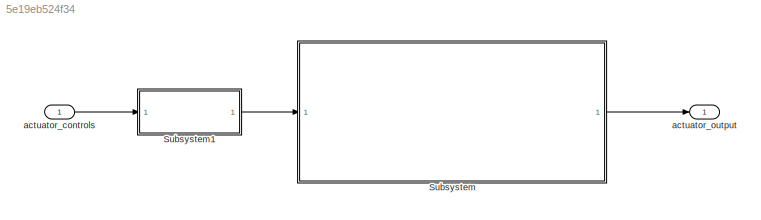
MODEL slx_5e19eb524f34
KIND model
CONFIG AbsTol = auto
CONFIG EnableMultiTasking = off
CONFIG FixedStep = 0.005
CONFIG MaxStep = auto
CONFIG MinStep = auto
CONFIG RelTol = 1e-3
CONFIG SampleTimeConstraint = Unconstrained
CONFIG SolverName = FixedStepAuto
CONFIG StartTime = 0.0
CONFIG StopTime = 10.0
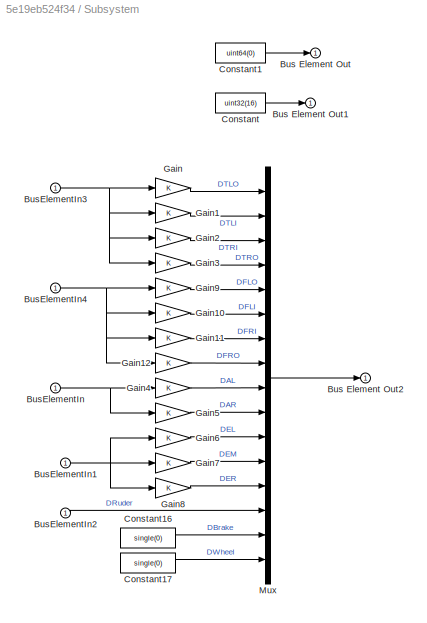
BLOCK [SubSystem] Subsystem
BLOCK [Outport] Subsystem/Bus Element Out
BLOCK [Outport] Subsystem/Bus Element Out1
BLOCK [Outport] Subsystem/Bus Element Out2
BLOCK [Inport] Subsystem/BusElementIn
BLOCK [Inport] Subsystem/BusElementIn1
BLOCK [Inport] Subsystem/BusElementIn2
BLOCK [Inport] Subsystem/BusElementIn3
BLOCK [Inport] Subsystem/BusElementIn4
BLOCK [Constant] Subsystem/Constant
  Value = uint32(16)
BLOCK [Constant] Subsystem/Constant1
  Value = uint64(0)
BLOCK [Constant] Subsystem/Constant16
  Value = single(0)
BLOCK [Constant] Subsystem/Constant17
  Value = single(0)
BLOCK [Gain] Subsystem/Gain
BLOCK [Gain] Subsystem/Gain1
BLOCK [Gain] Subsystem/Gain10
BLOCK [Gain] Subsystem/Gain11
BLOCK [Gain] Subsystem/Gain12
BLOCK [Gain] Subsystem/Gain2
BLOCK [Gain] Subsystem/Gain3
BLOCK [Gain] Subsystem/Gain4
BLOCK [Gain] Subsystem/Gain5
BLOCK [Gain] Subsystem/Gain6
BLOCK [Gain] Subsystem/Gain7
BLOCK [Gain] Subsystem/Gain8
BLOCK [Gain] Subsystem/Gain9
BLOCK [Mux] Subsystem/Mux
  DisplayOption = bar
  Inputs = 16
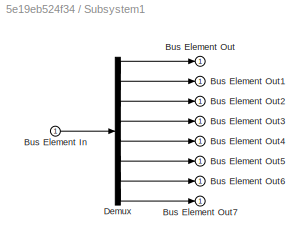
BLOCK [SubSystem] Subsystem1
BLOCK [Inport] Subsystem1/Bus Element In
BLOCK [Outport] Subsystem1/Bus Element Out
BLOCK [Outport] Subsystem1/Bus Element Out1
BLOCK [Outport] Subsystem1/Bus Element Out2
BLOCK [Outport] Subsystem1/Bus Element Out3
BLOCK [Outport] Subsystem1/Bus Element Out4
BLOCK [Outport] Subsystem1/Bus Element Out5
BLOCK [Outport] Subsystem1/Bus Element Out6
BLOCK [Outport] Subsystem1/Bus Element Out7
BLOCK [Demux] Subsystem1/Demux
  Outputs = 8
BLOCK [Inport] actuator_controls
  OutDataTypeStr = Bus: actuator_controls_s
BLOCK [Outport] actuator_output
  OutDataTypeStr = Bus: actuator_outputs_s
NET Subsystem/BusElementIn1:1 -> Subsystem/Gain6:1, Subsystem/Gain7:1, Subsystem/Gain8:1
LINE Subsystem/BusElementIn2:1 -> Subsystem/Mux:14
NET Subsystem/BusElementIn3:1 -> Subsystem/Gain1:1, Subsystem/Gain2:1, Subsystem/Gain3:1, Subsystem/Gain:1
NET Subsystem/BusElementIn4:1 -> Subsystem/Gain10:1, Subsystem/Gain11:1, Subsystem/Gain12:1, Subsystem/Gain9:1
NET Subsystem/BusElementIn:1 -> Subsystem/Gain4:1, Subsystem/Gain5:1
LINE Subsystem/Constant16:1 -> Subsystem/Mux:15
LINE Subsystem/Constant17:1 -> Subsystem/Mux:16
LINE Subsystem/Constant1:1 -> Subsystem/Bus Element Out:1
LINE Subsystem/Constant:1 -> Subsystem/Bus Element Out1:1
LINE Subsystem/Gain10:1 -> Subsystem/Mux:6
LINE Subsystem/Gain11:1 -> Subsystem/Mux:7
LINE Subsystem/Gain12:1 -> Subsystem/Mux:8
LINE Subsystem/Gain1:1 -> Subsystem/Mux:2
LINE Subsystem/Gain2:1 -> Subsystem/Mux:3
LINE Subsystem/Gain3:1 -> Subsystem/Mux:4
LINE Subsystem/Gain4:1 -> Subsystem/Mux:9
LINE Subsystem/Gain5:1 -> Subsystem/Mux:10
LINE Subsystem/Gain6:1 -> Subsystem/Mux:11
LINE Subsystem/Gain7:1 -> Subsystem/Mux:12
LINE Subsystem/Gain8:1 -> Subsystem/Mux:13
LINE Subsystem/Gain9:1 -> Subsystem/Mux:5
LINE Subsystem/Gain:1 -> Subsystem/Mux:1
LINE Subsystem/Mux:1 -> Subsystem/Bus Element Out2:1
LINE Subsystem1/Bus Element In:1 -> Subsystem1/Demux:1
LINE Subsystem1/Demux:1 -> Subsystem1/Bus Element Out:1
LINE Subsystem1/Demux:2 -> Subsystem1/Bus Element Out1:1
LINE Subsystem1/Demux:3 -> Subsystem1/Bus Element Out2:1
LINE Subsystem1/Demux:4 -> Subsystem1/Bus Element Out3:1
LINE Subsystem1/Demux:5 -> Subsystem1/Bus Element Out4:1
LINE Subsystem1/Demux:6 -> Subsystem1/Bus Element Out5:1
LINE Subsystem1/Demux:7 -> Subsystem1/Bus Element Out6:1
LINE Subsystem1/Demux:8 -> Subsystem1/Bus Element Out7:1
LINE Subsystem1:1 -> Subsystem:1
LINE Subsystem:1 -> actuator_output:1
LINE actuator_controls:1 -> Subsystem1:1
note: NET lines group one-source signal fan-out (src -> all destinations, sorted); 1:1 wires keep LINE
